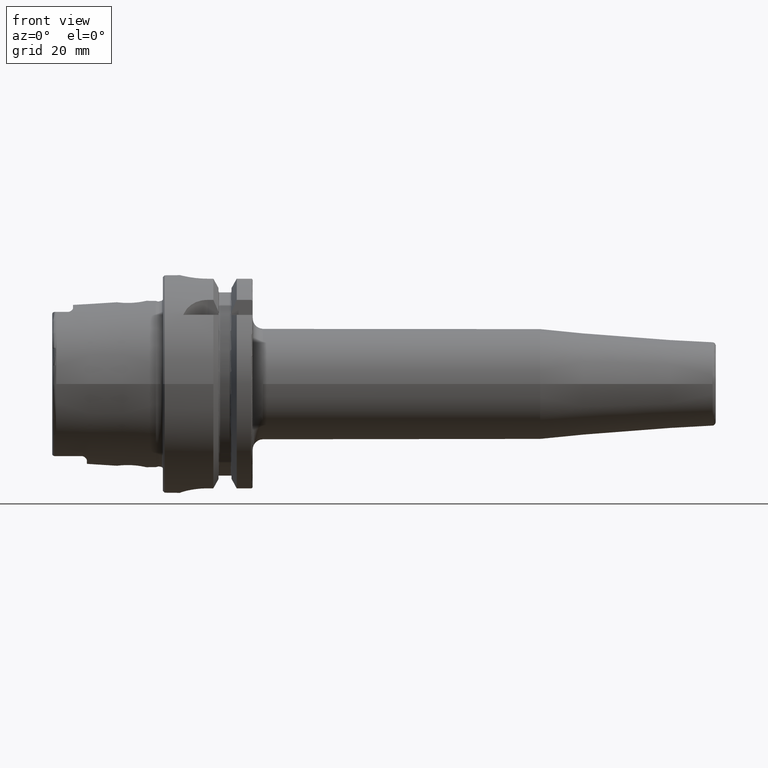
[diagram: clean part render]
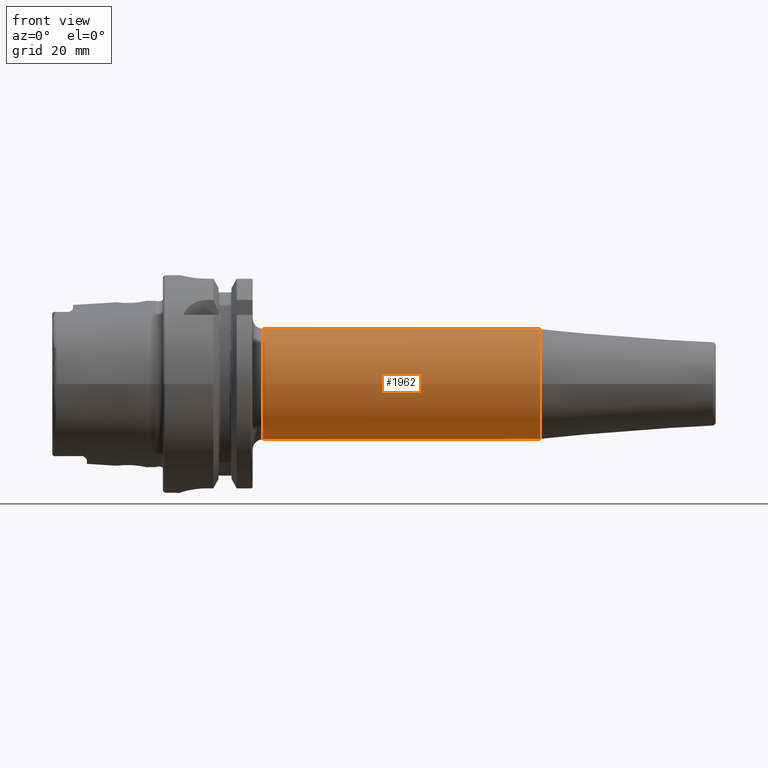
[diagram: same view with one face highlighted and labeled with its STEP entity id]
A machine part, front view. The second image highlights one B-rep face of the part: STEP entity #1962.
In plain terms, the highlighted cylindrical surface (bore or boss wall) has radius 16 mm, axis along (1, 0, 0).
Its self-contained STEP definition (entity closure, byte-faithful):
#177=CYLINDRICAL_SURFACE('',#2118,16.);
#217=FACE_OUTER_BOUND('',#336,.T.);
#336=EDGE_LOOP('',(#1345,#1346,#1347,#1348,#1349));
#462=LINE('',#2996,#569);
#569=VECTOR('',#2398,16.);
#682=CIRCLE('',#2112,16.);
#683=CIRCLE('',#2114,16.);
#686=CIRCLE('',#2117,16.);
#807=VERTEX_POINT('',#2984);
#808=VERTEX_POINT('',#2988);
#809=VERTEX_POINT('',#2989);
#1015=EDGE_CURVE('',#807,#807,#682,.T.);
#1016=EDGE_CURVE('',#808,#809,#683,.T.);
#1019=EDGE_CURVE('',#809,#808,#686,.T.);
#1020=EDGE_CURVE('',#807,#808,#462,.T.);
#1345=ORIENTED_EDGE('',*,*,#1015,.F.);
#1346=ORIENTED_EDGE('',*,*,#1020,.T.);
#1347=ORIENTED_EDGE('',*,*,#1019,.F.);
#1348=ORIENTED_EDGE('',*,*,#1016,.F.);
#1349=ORIENTED_EDGE('',*,*,#1020,.F.);
#1962=ADVANCED_FACE('',(#217),#177,.T.);
#2112=AXIS2_PLACEMENT_3D('',#2986,#2384,#2385);
#2114=AXIS2_PLACEMENT_3D('',#2990,#2388,#2389);
#2117=AXIS2_PLACEMENT_3D('',#2994,#2394,#2395);
#2118=AXIS2_PLACEMENT_3D('',#2995,#2396,#2397);
#2384=DIRECTION('center_axis',(1.,0.,0.));
#2385=DIRECTION('ref_axis',(0.,0.,-1.));
#2388=DIRECTION('center_axis',(-1.,0.,0.));
#2389=DIRECTION('ref_axis',(0.,-1.,-1.22464679914735E-16));
#2394=DIRECTION('center_axis',(-1.,0.,0.));
#2395=DIRECTION('ref_axis',(0.,-1.,-1.22464679914735E-16));
#2396=DIRECTION('center_axis',(1.,0.,0.));
#2397=DIRECTION('ref_axis',(0.,1.,0.));
#2398=DIRECTION('',(-1.,0.,0.));
#2984=CARTESIAN_POINT('',(109.175181055301,-16.,-1.95943487863577E-15));
#2986=CARTESIAN_POINT('Origin',(109.175181055301,0.,0.));
#2988=CARTESIAN_POINT('',(29.,-16.,-1.95943487863577E-15));
#2989=CARTESIAN_POINT('',(29.,-1.95943487863577E-15,-16.));
#2990=CARTESIAN_POINT('Origin',(29.,0.,0.));
#2994=CARTESIAN_POINT('Origin',(29.,0.,0.));
#2995=CARTESIAN_POINT('Origin',(67.5875905276506,0.,0.));
#2996=CARTESIAN_POINT('',(67.5875905276506,-16.,-1.95943487863577E-15));